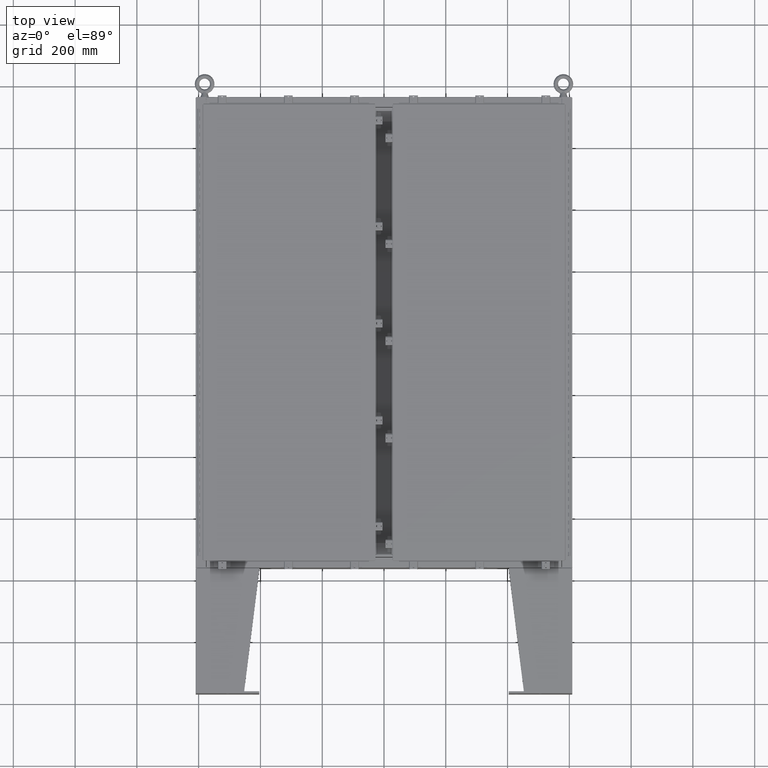
[diagram: clean part render]
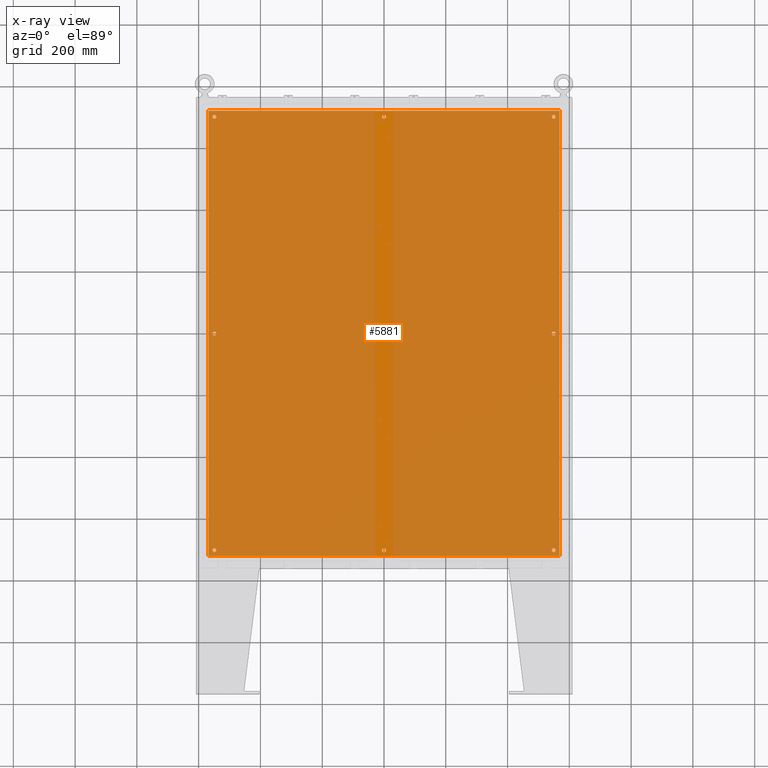
[diagram: x-ray — body ghosted, one internal face saturated and labeled with its STEP entity id]
A machine part, top view, then the same camera in x-ray: the body is ghosted and one INTERNAL B-rep face — a face not visible from any outside direction — is saturated and labeled: STEP entity #5881.
In plain terms, the highlighted planar face has unit normal (0, 0, -1).
Its self-contained STEP definition (entity closure, byte-faithful):
#45 = CARTESIAN_POINT ( 'NONE',  ( 0.2500000000000010000, -27.62500000000000400, -0.1039999999999999800 ) ) ;
#160 = EDGE_CURVE ( 'NONE', #12192, #39677, #45658, .T. ) ;
#1102 = CARTESIAN_POINT ( 'NONE',  ( 22.38299999999999900, 28.38299999999999600, -0.1040000000000009400 ) ) ;
#1492 = DIRECTION ( 'NONE',  ( -1.000000000000000000, 0.0000000000000000000, 0.0000000000000000000 ) ) ;
#1555 = EDGE_LOOP ( 'NONE', ( #67460, #47328 ) ) ;
#1594 = EDGE_CURVE ( 'NONE', #13837, #57696, #47084, .T. ) ;
#2072 = VERTEX_POINT ( 'NONE', #1102 ) ;
#2430 = AXIS2_PLACEMENT_3D ( 'NONE', #46478, #14888, #51726 ) ;
#2659 = EDGE_LOOP ( 'NONE', ( #56783, #21715 ) ) ;
#3456 = EDGE_CURVE ( 'NONE', #26887, #12050, #65784, .T. ) ;
#3657 = CIRCLE ( 'NONE', #28460, 0.2500000000000010000 ) ;
#4163 = AXIS2_PLACEMENT_3D ( 'NONE', #40169, #8622, #45440 ) ;
#4279 = DIRECTION ( 'NONE',  ( -1.000000000000000000, 0.0000000000000000000, 0.0000000000000000000 ) ) ;
#4410 = CARTESIAN_POINT ( 'NONE',  ( 22.49999999999999600, 28.38300000000000300, -0.1040000000000009400 ) ) ;
#4421 = EDGE_CURVE ( 'NONE', #9237, #54573, #52550, .T. ) ;
#5166 = CARTESIAN_POINT ( 'NONE',  ( -21.62500000000001800, 27.62500000000000400, -0.1039999999999999800 ) ) ;
#5198 = VERTEX_POINT ( 'NONE', #7951 ) ;
#5881 = ADVANCED_FACE ( 'NONE', ( #12029, #52363, #54023, #38410, #24350, #10387, #64725, #50719, #36750 ), #30809, .T. ) ;
#6019 = VECTOR ( 'NONE', #32776, 39.37007874015748100 ) ;
#6204 = CARTESIAN_POINT ( 'NONE',  ( 0.0000000000000000000, -27.62500000000000400, -0.1039999999999999800 ) ) ;
#7287 = CARTESIAN_POINT ( 'NONE',  ( 21.62500000000003600, -27.62500000000000000, -0.1039999999999999800 ) ) ;
#7471 = EDGE_CURVE ( 'NONE', #14017, #13595, #66441, .T. ) ;
#7951 = CARTESIAN_POINT ( 'NONE',  ( 21.87500000000001400, 5.181397728952178700E-015, -0.1039999999999999800 ) ) ;
#8622 = DIRECTION ( 'NONE',  ( -0.0000000000000000000, -0.0000000000000000000, 1.000000000000000000 ) ) ;
#8628 = ORIENTED_EDGE ( 'NONE', *, *, #160, .T. ) ;
#8666 = ORIENTED_EDGE ( 'NONE', *, *, #33284, .T. ) ;
#9097 = CIRCLE ( 'NONE', #37742, 0.2499999999999987000 ) ;
#9237 = VERTEX_POINT ( 'NONE', #55059 ) ;
#9280 = DIRECTION ( 'NONE',  ( -0.0000000000000000000, -0.0000000000000000000, 1.000000000000000000 ) ) ;
#10387 = FACE_BOUND ( 'NONE', #49743, .T. ) ;
#10458 = DIRECTION ( 'NONE',  ( -1.000000000000000000, 0.0000000000000000000, 0.0000000000000000000 ) ) ;
#11000 = CARTESIAN_POINT ( 'NONE',  ( -21.62500000000001800, -27.62500000000000400, -0.1039999999999999800 ) ) ;
#11474 = DIRECTION ( 'NONE',  ( -1.000000000000000000, 0.0000000000000000000, 0.0000000000000000000 ) ) ;
#11512 = DIRECTION ( 'NONE',  ( -0.0000000000000000000, -0.0000000000000000000, 1.000000000000000000 ) ) ;
#11780 = LINE ( 'NONE', #36769, #38160 ) ;
#12029 = FACE_BOUND ( 'NONE', #31253, .T. ) ;
#12050 = VERTEX_POINT ( 'NONE', #28856 ) ;
#12192 = VERTEX_POINT ( 'NONE', #40618 ) ;
#12386 = CIRCLE ( 'NONE', #16480, 0.2499999999999987000 ) ;
#12549 = DIRECTION ( 'NONE',  ( -1.000000000000000000, 0.0000000000000000000, 0.0000000000000000000 ) ) ;
#12936 = DIRECTION ( 'NONE',  ( 0.0000000000000000000, -1.000000000000000000, 0.0000000000000000000 ) ) ;
#13595 = VERTEX_POINT ( 'NONE', #48540 ) ;
#13837 = VERTEX_POINT ( 'NONE', #53984 ) ;
#13889 = EDGE_CURVE ( 'NONE', #54573, #9237, #59453, .T. ) ;
#14017 = VERTEX_POINT ( 'NONE', #56740 ) ;
#14078 = EDGE_CURVE ( 'NONE', #61408, #5198, #32243, .T. ) ;
#14888 = DIRECTION ( 'NONE',  ( -0.0000000000000000000, -0.0000000000000000000, 1.000000000000000000 ) ) ;
#14977 = CARTESIAN_POINT ( 'NONE',  ( -22.38300000000000600, 28.38299999999999600, -0.1040000000000009400 ) ) ;
#15042 = CIRCLE ( 'NONE', #44624, 0.2499999999999987000 ) ;
#15752 = CARTESIAN_POINT ( 'NONE',  ( -21.62500000000001800, 27.62500000000000400, -0.1039999999999999800 ) ) ;
#16223 = DIRECTION ( 'NONE',  ( -1.000000000000000000, 0.0000000000000000000, 0.0000000000000000000 ) ) ;
#16242 = AXIS2_PLACEMENT_3D ( 'NONE', #27120, #63954, #32438 ) ;
#16480 = AXIS2_PLACEMENT_3D ( 'NONE', #64564, #33039, #1492 ) ;
#17132 = CARTESIAN_POINT ( 'NONE',  ( -0.2500000000000010000, -27.62500000000000400, -0.1039999999999999800 ) ) ;
#17868 = ORIENTED_EDGE ( 'NONE', *, *, #4421, .T. ) ;
#18305 = AXIS2_PLACEMENT_3D ( 'NONE', #7287, #44119, #12549 ) ;
#18829 = CARTESIAN_POINT ( 'NONE',  ( 21.62500000000001800, 27.62500000000000700, -0.1039999999999999800 ) ) ;
#19066 = ORIENTED_EDGE ( 'NONE', *, *, #59200, .T. ) ;
#19093 = AXIS2_PLACEMENT_3D ( 'NONE', #15752, #52588, #21036 ) ;
#19357 = ORIENTED_EDGE ( 'NONE', *, *, #7471, .T. ) ;
#19965 = LINE ( 'NONE', #53706, #6019 ) ;
#20268 = VERTEX_POINT ( 'NONE', #17132 ) ;
#21009 = ORIENTED_EDGE ( 'NONE', *, *, #46136, .T. ) ;
#21036 = DIRECTION ( 'NONE',  ( -1.000000000000000000, 0.0000000000000000000, 0.0000000000000000000 ) ) ;
#21104 = VERTEX_POINT ( 'NONE', #45 ) ;
#21715 = ORIENTED_EDGE ( 'NONE', *, *, #14078, .T. ) ;
#22042 = CARTESIAN_POINT ( 'NONE',  ( 21.37500000000001800, 27.62500000000000700, -0.1039999999999999800 ) ) ;
#22089 = CARTESIAN_POINT ( 'NONE',  ( -21.62500000000000700, -1.151996773601270100E-016, -0.1039999999999999800 ) ) ;
#23423 = CARTESIAN_POINT ( 'NONE',  ( -21.87500000000000700, -8.458350738144361800E-017, -0.1039999999999999800 ) ) ;
#23784 = VERTEX_POINT ( 'NONE', #49885 ) ;
#23901 = EDGE_LOOP ( 'NONE', ( #8628, #8666 ) ) ;
#24136 = DIRECTION ( 'NONE',  ( -1.000000000000000000, 0.0000000000000000000, 0.0000000000000000000 ) ) ;
#24350 = FACE_BOUND ( 'NONE', #30564, .T. ) ;
#24387 = CARTESIAN_POINT ( 'NONE',  ( -0.2499999999999998300, 27.62500000000000400, -0.1039999999999999800 ) ) ;
#25701 = CARTESIAN_POINT ( 'NONE',  ( 0.0000000000000000000, 0.0000000000000000000, -0.1039999999999999800 ) ) ;
#25872 = DIRECTION ( 'NONE',  ( -0.0000000000000000000, -0.0000000000000000000, 1.000000000000000000 ) ) ;
#25884 = AXIS2_PLACEMENT_3D ( 'NONE', #18829, #55689, #24136 ) ;
#26501 = EDGE_CURVE ( 'NONE', #2072, #13837, #35967, .T. ) ;
#26887 = VERTEX_POINT ( 'NONE', #23423 ) ;
#27120 = CARTESIAN_POINT ( 'NONE',  ( 21.62500000000003600, -27.62500000000000000, -0.1039999999999999800 ) ) ;
#27401 = DIRECTION ( 'NONE',  ( -1.000000000000000000, 0.0000000000000000000, 0.0000000000000000000 ) ) ;
#28460 = AXIS2_PLACEMENT_3D ( 'NONE', #30198, #67032, #35475 ) ;
#28856 = CARTESIAN_POINT ( 'NONE',  ( -21.37500000000001100, -1.151996773601270100E-016, -0.1039999999999999800 ) ) ;
#29204 = CARTESIAN_POINT ( 'NONE',  ( 0.2499999999999998300, 27.62500000000000400, -0.1039999999999999800 ) ) ;
#29363 = CIRCLE ( 'NONE', #25884, 0.2499999999999987000 ) ;
#30198 = CARTESIAN_POINT ( 'NONE',  ( 0.0000000000000000000, -27.62500000000000400, -0.1039999999999999800 ) ) ;
#30378 = ORIENTED_EDGE ( 'NONE', *, *, #1594, .F. ) ;
#30564 = EDGE_LOOP ( 'NONE', ( #19066, #53431 ) ) ;
#30809 = PLANE ( 'NONE',  #50748 ) ;
#30855 = EDGE_CURVE ( 'NONE', #23784, #67318, #12386, .T. ) ;
#31034 = DIRECTION ( 'NONE',  ( -1.000000000000000000, 0.0000000000000000000, -0.0000000000000000000 ) ) ;
#31253 = EDGE_LOOP ( 'NONE', ( #21009, #45847 ) ) ;
#32092 = AXIS2_PLACEMENT_3D ( 'NONE', #43084, #11512, #48341 ) ;
#32243 = CIRCLE ( 'NONE', #57179, 0.2499999999999987000 ) ;
#32438 = DIRECTION ( 'NONE',  ( -1.000000000000000000, 0.0000000000000000000, 0.0000000000000000000 ) ) ;
#32776 = DIRECTION ( 'NONE',  ( 1.000000000000000000, -0.0000000000000000000, -0.0000000000000000000 ) ) ;
#32987 = CIRCLE ( 'NONE', #2430, 0.2499999999999987000 ) ;
#33039 = DIRECTION ( 'NONE',  ( -0.0000000000000000000, -0.0000000000000000000, 1.000000000000000000 ) ) ;
#33249 = ORIENTED_EDGE ( 'NONE', *, *, #56570, .F. ) ;
#33284 = EDGE_CURVE ( 'NONE', #39677, #12192, #29363, .T. ) ;
#33743 = AXIS2_PLACEMENT_3D ( 'NONE', #49789, #9280, #40822 ) ;
#34251 = CARTESIAN_POINT ( 'NONE',  ( 21.37500000000001800, 5.212013898930861700E-015, -0.1039999999999999800 ) ) ;
#35294 = AXIS2_PLACEMENT_3D ( 'NONE', #6204, #43036, #11474 ) ;
#35475 = DIRECTION ( 'NONE',  ( -1.000000000000000000, 0.0000000000000000000, 0.0000000000000000000 ) ) ;
#35810 = DIRECTION ( 'NONE',  ( -0.0000000000000000000, -0.0000000000000000000, 1.000000000000000000 ) ) ;
#35967 = LINE ( 'NONE', #4410, #62325 ) ;
#36750 = FACE_OUTER_BOUND ( 'NONE', #62665, .T. ) ;
#36769 = CARTESIAN_POINT ( 'NONE',  ( 22.38299999999999900, -28.38299999999999600, -0.1040000000000009400 ) ) ;
#37742 = AXIS2_PLACEMENT_3D ( 'NONE', #11000, #47810, #16223 ) ;
#38036 = EDGE_CURVE ( 'NONE', #62688, #50199, #40399, .T. ) ;
#38160 = VECTOR ( 'NONE', #42064, 39.37007874015748100 ) ;
#38410 = FACE_BOUND ( 'NONE', #40214, .T. ) ;
#39230 = AXIS2_PLACEMENT_3D ( 'NONE', #22089, #58951, #27401 ) ;
#39523 = CARTESIAN_POINT ( 'NONE',  ( -22.38300000000000600, -28.38300000000000300, -0.1040000000000009400 ) ) ;
#39677 = VERTEX_POINT ( 'NONE', #22042 ) ;
#40169 = CARTESIAN_POINT ( 'NONE',  ( 0.0000000000000000000, 27.62500000000000400, -0.1039999999999999800 ) ) ;
#40214 = EDGE_LOOP ( 'NONE', ( #56198, #43469 ) ) ;
#40399 = CIRCLE ( 'NONE', #58762, 0.2499999999999998300 ) ;
#40498 = CARTESIAN_POINT ( 'NONE',  ( 21.37500000000003600, -27.62500000000000000, -0.1039999999999999800 ) ) ;
#40617 = EDGE_LOOP ( 'NONE', ( #19357, #44357 ) ) ;
#40618 = CARTESIAN_POINT ( 'NONE',  ( 21.87500000000001400, 27.62500000000000700, -0.1039999999999999800 ) ) ;
#40822 = DIRECTION ( 'NONE',  ( -1.000000000000000000, 0.0000000000000000000, 0.0000000000000000000 ) ) ;
#42002 = DIRECTION ( 'NONE',  ( -0.0000000000000000000, -0.0000000000000000000, 1.000000000000000000 ) ) ;
#42064 = DIRECTION ( 'NONE',  ( 0.0000000000000000000, 1.000000000000000000, 0.0000000000000000000 ) ) ;
#43036 = DIRECTION ( 'NONE',  ( -0.0000000000000000000, -0.0000000000000000000, 1.000000000000000000 ) ) ;
#43084 = CARTESIAN_POINT ( 'NONE',  ( 21.62500000000001800, 5.181397728952178700E-015, -0.1039999999999999800 ) ) ;
#43469 = ORIENTED_EDGE ( 'NONE', *, *, #3456, .T. ) ;
#44119 = DIRECTION ( 'NONE',  ( -0.0000000000000000000, -0.0000000000000000000, 1.000000000000000000 ) ) ;
#44357 = ORIENTED_EDGE ( 'NONE', *, *, #63602, .T. ) ;
#44624 = AXIS2_PLACEMENT_3D ( 'NONE', #5166, #42002, #10458 ) ;
#45440 = DIRECTION ( 'NONE',  ( -1.000000000000000000, 0.0000000000000000000, 0.0000000000000000000 ) ) ;
#45451 = VECTOR ( 'NONE', #12936, 39.37007874015748100 ) ;
#45658 = CIRCLE ( 'NONE', #33743, 0.2499999999999987000 ) ;
#45847 = ORIENTED_EDGE ( 'NONE', *, *, #49704, .T. ) ;
#46136 = EDGE_CURVE ( 'NONE', #21104, #20268, #49239, .T. ) ;
#46478 = CARTESIAN_POINT ( 'NONE',  ( -21.62500000000000700, -1.151996773601270100E-016, -0.1039999999999999800 ) ) ;
#47084 = LINE ( 'NONE', #14977, #45451 ) ;
#47328 = ORIENTED_EDGE ( 'NONE', *, *, #38036, .T. ) ;
#47810 = DIRECTION ( 'NONE',  ( -0.0000000000000000000, -0.0000000000000000000, 1.000000000000000000 ) ) ;
#48157 = CARTESIAN_POINT ( 'NONE',  ( -21.37500000000001800, -27.62500000000000400, -0.1039999999999999800 ) ) ;
#48341 = DIRECTION ( 'NONE',  ( -1.000000000000000000, 0.0000000000000000000, 0.0000000000000000000 ) ) ;
#48540 = CARTESIAN_POINT ( 'NONE',  ( -21.87500000000001400, 27.62500000000000400, -0.1039999999999999800 ) ) ;
#48934 = EDGE_CURVE ( 'NONE', #50199, #62688, #58942, .T. ) ;
#49239 = CIRCLE ( 'NONE', #35294, 0.2500000000000010000 ) ;
#49688 = ORIENTED_EDGE ( 'NONE', *, *, #26501, .F. ) ;
#49704 = EDGE_CURVE ( 'NONE', #20268, #21104, #3657, .T. ) ;
#49743 = EDGE_LOOP ( 'NONE', ( #17868, #51136 ) ) ;
#49789 = CARTESIAN_POINT ( 'NONE',  ( 21.62500000000001800, 27.62500000000000700, -0.1039999999999999800 ) ) ;
#49885 = CARTESIAN_POINT ( 'NONE',  ( -21.87500000000001400, -27.62500000000000400, -0.1039999999999999800 ) ) ;
#50199 = VERTEX_POINT ( 'NONE', #29204 ) ;
#50505 = EDGE_CURVE ( 'NONE', #53776, #2072, #11780, .T. ) ;
#50719 = FACE_BOUND ( 'NONE', #40617, .T. ) ;
#50748 = AXIS2_PLACEMENT_3D ( 'NONE', #25701, #62552, #31034 ) ;
#51136 = ORIENTED_EDGE ( 'NONE', *, *, #13889, .T. ) ;
#51726 = DIRECTION ( 'NONE',  ( -1.000000000000000000, 0.0000000000000000000, 0.0000000000000000000 ) ) ;
#51728 = EDGE_CURVE ( 'NONE', #5198, #61408, #64425, .T. ) ;
#52363 = FACE_BOUND ( 'NONE', #1555, .T. ) ;
#52550 = CIRCLE ( 'NONE', #16242, 0.2499999999999987000 ) ;
#52588 = DIRECTION ( 'NONE',  ( -0.0000000000000000000, -0.0000000000000000000, 1.000000000000000000 ) ) ;
#53431 = ORIENTED_EDGE ( 'NONE', *, *, #30855, .T. ) ;
#53706 = CARTESIAN_POINT ( 'NONE',  ( -22.50000000000000400, -28.38300000000000300, -0.1040000000000009400 ) ) ;
#53776 = VERTEX_POINT ( 'NONE', #63123 ) ;
#53984 = CARTESIAN_POINT ( 'NONE',  ( -22.38300000000000600, 28.38299999999999600, -0.1040000000000009400 ) ) ;
#54023 = FACE_BOUND ( 'NONE', #2659, .T. ) ;
#54573 = VERTEX_POINT ( 'NONE', #40498 ) ;
#55059 = CARTESIAN_POINT ( 'NONE',  ( 21.87500000000003200, -27.62500000000000000, -0.1039999999999999800 ) ) ;
#55689 = DIRECTION ( 'NONE',  ( -0.0000000000000000000, -0.0000000000000000000, 1.000000000000000000 ) ) ;
#56198 = ORIENTED_EDGE ( 'NONE', *, *, #59029, .T. ) ;
#56570 = EDGE_CURVE ( 'NONE', #57696, #53776, #19965, .T. ) ;
#56740 = CARTESIAN_POINT ( 'NONE',  ( -21.37500000000001800, 27.62500000000000400, -0.1039999999999999800 ) ) ;
#56783 = ORIENTED_EDGE ( 'NONE', *, *, #51728, .T. ) ;
#57179 = AXIS2_PLACEMENT_3D ( 'NONE', #57419, #25872, #62719 ) ;
#57419 = CARTESIAN_POINT ( 'NONE',  ( 21.62500000000001800, 5.181397728952178700E-015, -0.1039999999999999800 ) ) ;
#57696 = VERTEX_POINT ( 'NONE', #39523 ) ;
#58762 = AXIS2_PLACEMENT_3D ( 'NONE', #67347, #35810, #4279 ) ;
#58942 = CIRCLE ( 'NONE', #4163, 0.2499999999999998300 ) ;
#58951 = DIRECTION ( 'NONE',  ( -0.0000000000000000000, -0.0000000000000000000, 1.000000000000000000 ) ) ;
#59029 = EDGE_CURVE ( 'NONE', #12050, #26887, #32987, .T. ) ;
#59200 = EDGE_CURVE ( 'NONE', #67318, #23784, #9097, .T. ) ;
#59442 = ORIENTED_EDGE ( 'NONE', *, *, #50505, .F. ) ;
#59453 = CIRCLE ( 'NONE', #18305, 0.2499999999999987000 ) ;
#61408 = VERTEX_POINT ( 'NONE', #34251 ) ;
#62179 = DIRECTION ( 'NONE',  ( -1.000000000000000000, -0.0000000000000000000, -0.0000000000000000000 ) ) ;
#62325 = VECTOR ( 'NONE', #62179, 39.37007874015748100 ) ;
#62552 = DIRECTION ( 'NONE',  ( 0.0000000000000000000, 0.0000000000000000000, -1.000000000000000000 ) ) ;
#62665 = EDGE_LOOP ( 'NONE', ( #33249, #30378, #49688, #59442 ) ) ;
#62688 = VERTEX_POINT ( 'NONE', #24387 ) ;
#62719 = DIRECTION ( 'NONE',  ( -1.000000000000000000, 0.0000000000000000000, 0.0000000000000000000 ) ) ;
#63123 = CARTESIAN_POINT ( 'NONE',  ( 22.38299999999999900, -28.38299999999999600, -0.1040000000000009400 ) ) ;
#63602 = EDGE_CURVE ( 'NONE', #13595, #14017, #15042, .T. ) ;
#63954 = DIRECTION ( 'NONE',  ( -0.0000000000000000000, -0.0000000000000000000, 1.000000000000000000 ) ) ;
#64425 = CIRCLE ( 'NONE', #32092, 0.2499999999999987000 ) ;
#64564 = CARTESIAN_POINT ( 'NONE',  ( -21.62500000000001800, -27.62500000000000400, -0.1039999999999999800 ) ) ;
#64725 = FACE_BOUND ( 'NONE', #23901, .T. ) ;
#65784 = CIRCLE ( 'NONE', #39230, 0.2499999999999987000 ) ;
#66441 = CIRCLE ( 'NONE', #19093, 0.2499999999999987000 ) ;
#67032 = DIRECTION ( 'NONE',  ( -0.0000000000000000000, -0.0000000000000000000, 1.000000000000000000 ) ) ;
#67318 = VERTEX_POINT ( 'NONE', #48157 ) ;
#67347 = CARTESIAN_POINT ( 'NONE',  ( 0.0000000000000000000, 27.62500000000000400, -0.1039999999999999800 ) ) ;
#67460 = ORIENTED_EDGE ( 'NONE', *, *, #48934, .T. ) ;